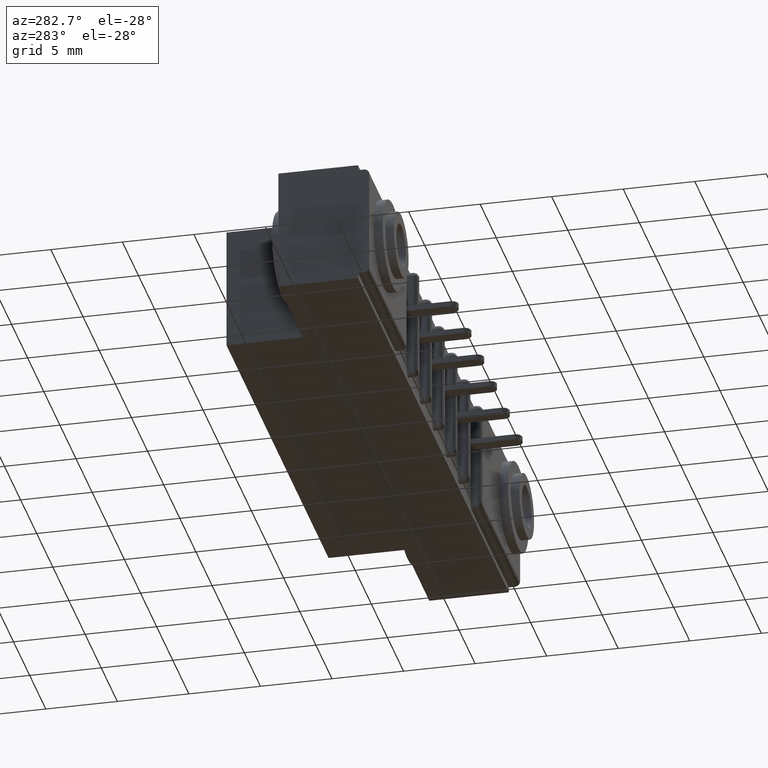
[diagram: clean part render]
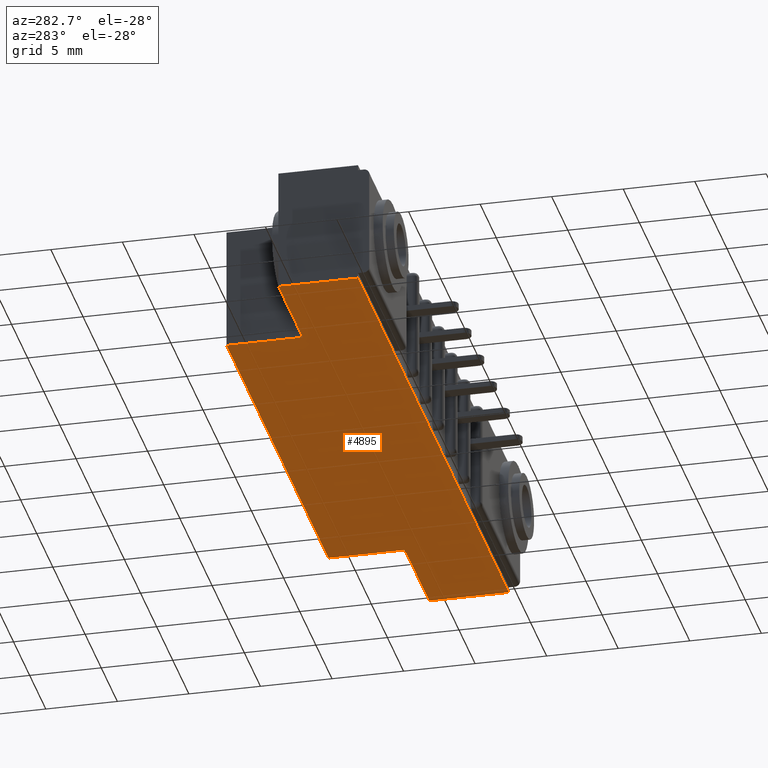
[diagram: same view with one face highlighted and labeled with its STEP entity id]
A machine part, auxiliary view. The second image highlights one B-rep face of the part: STEP entity #4895.
In plain terms, the highlighted planar face has unit normal (0, 0, 1).
Its self-contained STEP definition (entity closure, byte-faithful):
#19 = ORIENTED_EDGE ( 'NONE', *, *, #3182, .F. ) ;
#52 = ORIENTED_EDGE ( 'NONE', *, *, #2603, .T. ) ;
#61 = ORIENTED_EDGE ( 'NONE', *, *, #3201, .T. ) ;
#72 = VECTOR ( 'NONE', #1059, 39.37007874015748100 ) ;
#157 = ORIENTED_EDGE ( 'NONE', *, *, #2326, .F. ) ;
#166 = ORIENTED_EDGE ( 'NONE', *, *, #3204, .F. ) ;
#179 = CARTESIAN_POINT ( 'NONE',  ( 1.842000000000000700, 0.2500000000000000600, -0.3430000000000000300 ) ) ;
#265 = ORIENTED_EDGE ( 'NONE', *, *, #3278, .T. ) ;
#273 = LINE ( 'NONE', #3033, #72 ) ;
#332 = LINE ( 'NONE', #11283, #7384 ) ;
#710 = CARTESIAN_POINT ( 'NONE',  ( 1.842000000000000700, 0.03100000000000000000, -0.3430000000000000300 ) ) ;
#816 = ORIENTED_EDGE ( 'NONE', *, *, #2039, .F. ) ;
#1040 = ORIENTED_EDGE ( 'NONE', *, *, #3013, .F. ) ;
#1059 = DIRECTION ( 'NONE',  ( -0.0000000000000000000, 1.000000000000000000, -0.0000000000000000000 ) ) ;
#1383 = LINE ( 'NONE', #5772, #6020 ) ;
#1710 = EDGE_LOOP ( 'NONE', ( #816, #1040, #19, #52, #61, #157, #166, #265 ) ) ;
#1825 = VECTOR ( 'NONE', #2106, 39.37007874015748100 ) ;
#1865 = CARTESIAN_POINT ( 'NONE',  ( 0.2979999999999998200, 0.4600000000000000200, -0.3430000000000000300 ) ) ;
#1911 = DIRECTION ( 'NONE',  ( -0.0000000000000000000, -1.000000000000000000, -0.0000000000000000000 ) ) ;
#1948 = LINE ( 'NONE', #5081, #1825 ) ;
#2039 = EDGE_CURVE ( 'NONE', #9251, #5732, #4354, .T. ) ;
#2106 = DIRECTION ( 'NONE',  ( -0.0000000000000000000, -1.000000000000000000, -0.0000000000000000000 ) ) ;
#2326 = EDGE_CURVE ( 'NONE', #6619, #10794, #3248, .T. ) ;
#2341 = CARTESIAN_POINT ( 'NONE',  ( 0.2979999999999999900, 0.2500000000000000600, -0.3430000000000000300 ) ) ;
#2350 = VERTEX_POINT ( 'NONE', #6003 ) ;
#2495 = VERTEX_POINT ( 'NONE', #4818 ) ;
#2603 = EDGE_CURVE ( 'NONE', #2350, #5437, #1948, .T. ) ;
#3013 = EDGE_CURVE ( 'NONE', #2495, #9251, #273, .T. ) ;
#3033 = CARTESIAN_POINT ( 'NONE',  ( 1.544000000000000700, 0.2500000000000000600, -0.3430000000000000300 ) ) ;
#3182 = EDGE_CURVE ( 'NONE', #2350, #2495, #4336, .T. ) ;
#3201 = EDGE_CURVE ( 'NONE', #5437, #10794, #10238, .T. ) ;
#3204 = EDGE_CURVE ( 'NONE', #7799, #6619, #1383, .T. ) ;
#3236 = VECTOR ( 'NONE', #1911, 39.37007874015748100 ) ;
#3248 = LINE ( 'NONE', #6580, #3236 ) ;
#3278 = EDGE_CURVE ( 'NONE', #7799, #5732, #332, .T. ) ;
#4058 = VECTOR ( 'NONE', #7373, 39.37007874015748100 ) ;
#4321 = VECTOR ( 'NONE', #9587, 39.37007874015748100 ) ;
#4336 = LINE ( 'NONE', #179, #10751 ) ;
#4354 = LINE ( 'NONE', #11197, #4321 ) ;
#4731 = DIRECTION ( 'NONE',  ( 1.000000000000000000, 0.0000000000000000000, -0.0000000000000000000 ) ) ;
#4818 = CARTESIAN_POINT ( 'NONE',  ( 1.544000000000000700, 0.2500000000000000600, -0.3430000000000000300 ) ) ;
#4895 = ADVANCED_FACE ( 'NONE', ( #8204 ), #10886, .F. ) ;
#5081 = CARTESIAN_POINT ( 'NONE',  ( 1.842000000000000700, 0.4600000000000000200, -0.3430000000000000300 ) ) ;
#5437 = VERTEX_POINT ( 'NONE', #710 ) ;
#5475 = DIRECTION ( 'NONE',  ( -1.000000000000000000, 0.0000000000000000000, 0.0000000000000000000 ) ) ;
#5732 = VERTEX_POINT ( 'NONE', #1865 ) ;
#5772 = CARTESIAN_POINT ( 'NONE',  ( 0.0000000000000000000, 0.2500000000000000600, -0.3430000000000000300 ) ) ;
#6003 = CARTESIAN_POINT ( 'NONE',  ( 1.842000000000000700, 0.2500000000000000600, -0.3430000000000000300 ) ) ;
#6020 = VECTOR ( 'NONE', #9810, 39.37007874015748100 ) ;
#6021 = CARTESIAN_POINT ( 'NONE',  ( 0.0000000000000000000, 0.03100000000000000000, -0.3430000000000000300 ) ) ;
#6291 = CARTESIAN_POINT ( 'NONE',  ( 0.0000000000000000000, 0.4600000000000000200, -0.3430000000000000300 ) ) ;
#6580 = CARTESIAN_POINT ( 'NONE',  ( 0.0000000000000000000, 0.4600000000000000200, -0.3430000000000000300 ) ) ;
#6619 = VERTEX_POINT ( 'NONE', #7926 ) ;
#7373 = DIRECTION ( 'NONE',  ( -1.000000000000000000, -0.0000000000000000000, -0.0000000000000000000 ) ) ;
#7384 = VECTOR ( 'NONE', #10516, 39.37007874015748100 ) ;
#7627 = CARTESIAN_POINT ( 'NONE',  ( 1.842000000000000700, 0.03100000000000000000, -0.3430000000000000300 ) ) ;
#7799 = VERTEX_POINT ( 'NONE', #2341 ) ;
#7926 = CARTESIAN_POINT ( 'NONE',  ( 0.0000000000000000000, 0.2500000000000000600, -0.3430000000000000300 ) ) ;
#8022 = DIRECTION ( 'NONE',  ( 0.0000000000000000000, 0.0000000000000000000, 1.000000000000000000 ) ) ;
#8204 = FACE_OUTER_BOUND ( 'NONE', #1710, .T. ) ;
#9251 = VERTEX_POINT ( 'NONE', #10683 ) ;
#9587 = DIRECTION ( 'NONE',  ( -1.000000000000000000, -0.0000000000000000000, -0.0000000000000000000 ) ) ;
#9619 = AXIS2_PLACEMENT_3D ( 'NONE', #6291, #8022, #4731 ) ;
#9810 = DIRECTION ( 'NONE',  ( -1.000000000000000000, -0.0000000000000000000, -0.0000000000000000000 ) ) ;
#10238 = LINE ( 'NONE', #7627, #4058 ) ;
#10516 = DIRECTION ( 'NONE',  ( -0.0000000000000000000, 1.000000000000000000, -0.0000000000000000000 ) ) ;
#10683 = CARTESIAN_POINT ( 'NONE',  ( 1.544000000000000700, 0.4600000000000000200, -0.3430000000000000300 ) ) ;
#10751 = VECTOR ( 'NONE', #5475, 39.37007874015748100 ) ;
#10794 = VERTEX_POINT ( 'NONE', #6021 ) ;
#10886 = PLANE ( 'NONE',  #9619 ) ;
#11197 = CARTESIAN_POINT ( 'NONE',  ( 0.0000000000000000000, 0.4600000000000000200, -0.3430000000000000300 ) ) ;
#11283 = CARTESIAN_POINT ( 'NONE',  ( 0.2979999999999998200, 0.2500000000000000600, -0.3430000000000000300 ) ) ;